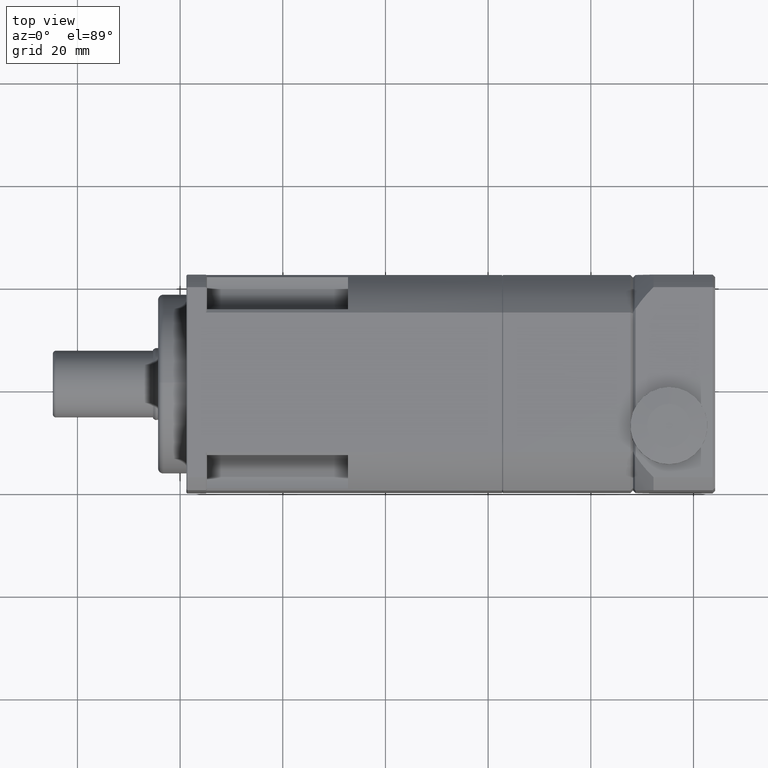
[diagram: clean part render]
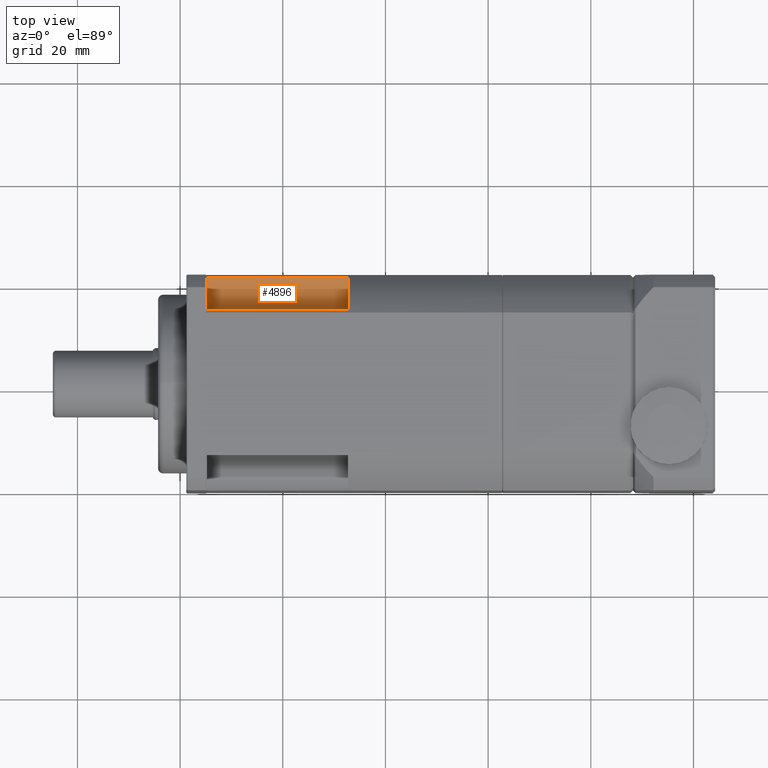
[diagram: same view with one face highlighted and labeled with its STEP entity id]
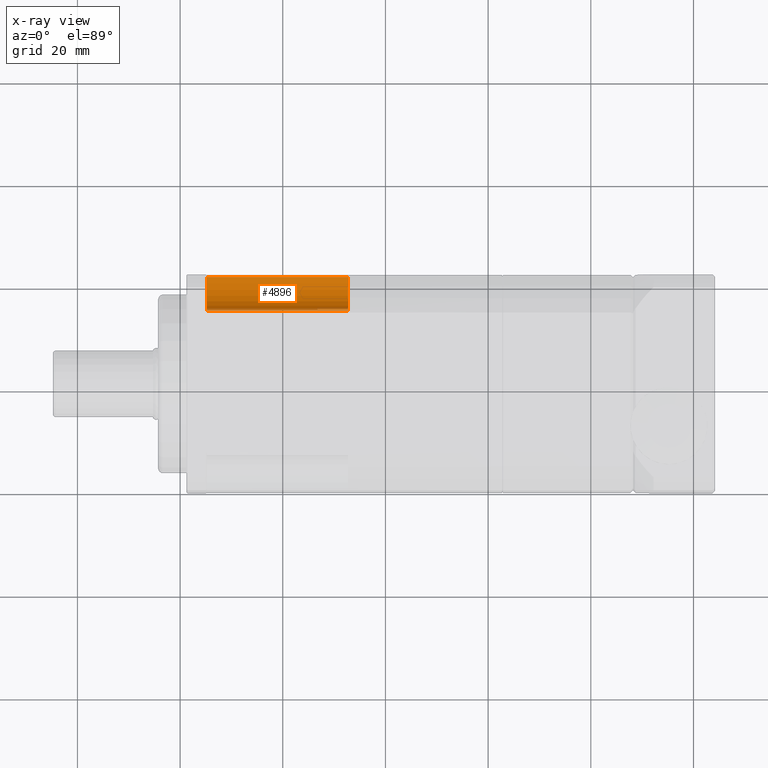
[diagram: x-ray of the same camera — body ghosted, the highlighted face saturated]
A machine part, top view. The second image highlights one B-rep face of the part: STEP entity #4896.
The next image is the same camera in x-ray: the body ghosted, the highlighted face saturated — about 0% of this face is hidden behind the body in this view.
In plain terms, the highlighted cylindrical surface (edge-blend (fillet) strip) has radius 5 mm, axis along (-1, 0, 0).
Its self-contained STEP definition (entity closure, byte-faithful):
#259=LINE('',#8221,#493);
#260=LINE('',#8222,#494);
#493=VECTOR('',#6616,27.5);
#494=VECTOR('',#6617,27.5);
#1202=FACE_OUTER_BOUND('',#1633,.T.);
#1633=EDGE_LOOP('',(#3874,#3875,#3876,#3877));
#1898=CIRCLE('',#5256,5.);
#1962=CIRCLE('',#5398,5.);
#2222=VERTEX_POINT('',#7715);
#2223=VERTEX_POINT('',#7716);
#2322=VERTEX_POINT('',#8093);
#2323=VERTEX_POINT('',#8095);
#2712=EDGE_CURVE('',#2222,#2223,#1898,.T.);
#2853=EDGE_CURVE('',#2323,#2322,#1962,.T.);
#2899=EDGE_CURVE('',#2223,#2322,#259,.T.);
#2900=EDGE_CURVE('',#2323,#2222,#260,.T.);
#3874=ORIENTED_EDGE('',*,*,#2899,.F.);
#3875=ORIENTED_EDGE('',*,*,#2712,.F.);
#3876=ORIENTED_EDGE('',*,*,#2900,.F.);
#3877=ORIENTED_EDGE('',*,*,#2853,.T.);
#4446=CYLINDRICAL_SURFACE('',#5446,5.);
#4896=ADVANCED_FACE('',(#1202),#4446,.F.);
#5256=AXIS2_PLACEMENT_3D('',#7717,#6176,#6177);
#5398=AXIS2_PLACEMENT_3D('',#8096,#6501,#6502);
#5446=AXIS2_PLACEMENT_3D('',#8220,#6614,#6615);
#6176=DIRECTION('center_axis',(-1.,4.44089209850051E-16,1.50008167835232E-15));
#6177=DIRECTION('ref_axis',(4.44089209850037E-16,1.,-9.61885800570989E-15));
#6501=DIRECTION('center_axis',(-1.,4.44089209850051E-16,1.50008167835232E-15));
#6502=DIRECTION('ref_axis',(4.44089209850037E-16,1.,-9.61885800570989E-15));
#6614=DIRECTION('center_axis',(-1.,4.44089209850051E-16,1.50008167835232E-15));
#6615=DIRECTION('ref_axis',(4.44089209850037E-16,1.,-9.61885800570989E-15));
#6616=DIRECTION('',(-1.,4.44089209850051E-16,1.50008167835232E-15));
#6617=DIRECTION('',(1.,-4.44089209850051E-16,-1.50008167835232E-15));
#7715=CARTESIAN_POINT('',(-7.28400498561356,-18.2911735419806,-13.1486214700567));
#7716=CARTESIAN_POINT('',(-7.28400498561356,-24.6683513078355,-6.77144370420163));
#7717=CARTESIAN_POINT('Origin',(-7.28400498561356,-19.9523787351721,-8.43264889739326));
#8093=CARTESIAN_POINT('',(-34.7840049856136,-24.6683513078355,-6.77144370420159));
#8095=CARTESIAN_POINT('',(-34.7840049856136,-18.2911735419806,-13.1486214700566));
#8096=CARTESIAN_POINT('Origin',(-34.7840049856136,-19.9523787351721,-8.43264889739322));
#8220=CARTESIAN_POINT('Origin',(-7.28400498561356,-19.9523787351721,-8.43264889739326));
#8221=CARTESIAN_POINT('',(-7.28400498561356,-24.6683513078355,-6.77144370420163));
#8222=CARTESIAN_POINT('',(-7.28400498561356,-18.2911735419806,-13.1486214700567));